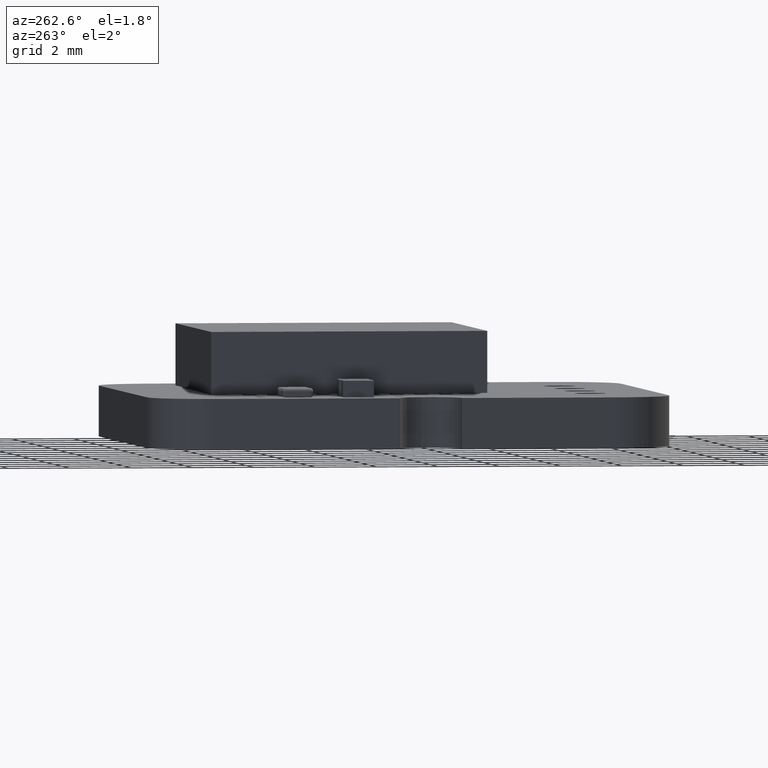
[diagram: clean part render]
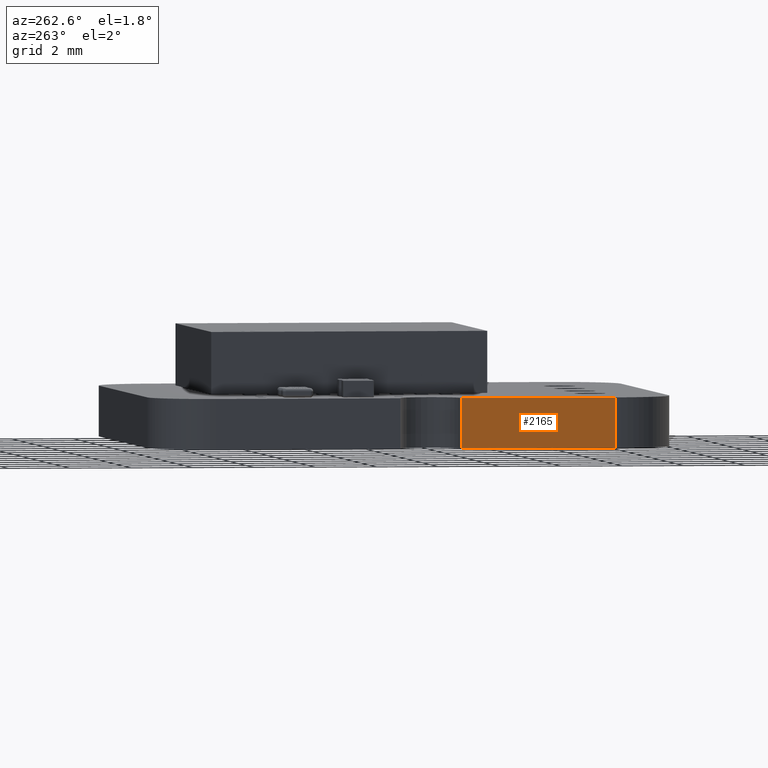
[diagram: same view with one face highlighted and labeled with its STEP entity id]
A machine part, auxiliary view. The second image highlights one B-rep face of the part: STEP entity #2165.
In plain terms, the highlighted planar face has unit normal (1, 0, 0).
Its self-contained STEP definition (entity closure, byte-faithful):
#2109 = VERTEX_POINT('',#2110);
#2110 = CARTESIAN_POINT('',(0.889,-11.669,0.82));
#2116 = EDGE_CURVE('',#2117,#2109,#2119,.T.);
#2117 = VERTEX_POINT('',#2118);
#2118 = CARTESIAN_POINT('',(0.889,-11.669,-0.82));
#2119 = LINE('',#2120,#2121);
#2120 = CARTESIAN_POINT('',(0.889,-11.669,-0.82));
#2121 = VECTOR('',#2122,1.);
#2122 = DIRECTION('',(0.E+000,0.E+000,1.));
#2165 = ADVANCED_FACE('',(#2166),#2191,.F.);
#2166 = FACE_BOUND('',#2167,.F.);
#2167 = EDGE_LOOP('',(#2168,#2169,#2177,#2185));
#2168 = ORIENTED_EDGE('',*,*,#2116,.T.);
#2169 = ORIENTED_EDGE('',*,*,#2170,.T.);
#2170 = EDGE_CURVE('',#2109,#2171,#2173,.T.);
#2171 = VERTEX_POINT('',#2172);
#2172 = CARTESIAN_POINT('',(0.889,-16.669,0.82));
#2173 = LINE('',#2174,#2175);
#2174 = CARTESIAN_POINT('',(0.889,-11.669,0.82));
#2175 = VECTOR('',#2176,1.);
#2176 = DIRECTION('',(0.E+000,-1.,0.E+000));
#2177 = ORIENTED_EDGE('',*,*,#2178,.F.);
#2178 = EDGE_CURVE('',#2179,#2171,#2181,.T.);
#2179 = VERTEX_POINT('',#2180);
#2180 = CARTESIAN_POINT('',(0.889,-16.669,-0.82));
#2181 = LINE('',#2182,#2183);
#2182 = CARTESIAN_POINT('',(0.889,-16.669,-0.82));
#2183 = VECTOR('',#2184,1.);
#2184 = DIRECTION('',(0.E+000,0.E+000,1.));
#2185 = ORIENTED_EDGE('',*,*,#2186,.F.);
#2186 = EDGE_CURVE('',#2117,#2179,#2187,.T.);
#2187 = LINE('',#2188,#2189);
#2188 = CARTESIAN_POINT('',(0.889,-11.669,-0.82));
#2189 = VECTOR('',#2190,1.);
#2190 = DIRECTION('',(0.E+000,-1.,0.E+000));
#2191 = PLANE('',#2192);
#2192 = AXIS2_PLACEMENT_3D('',#2193,#2194,#2195);
#2193 = CARTESIAN_POINT('',(0.889,-11.669,-0.82));
#2194 = DIRECTION('',(1.,0.E+000,-0.E+000));
#2195 = DIRECTION('',(0.E+000,-1.,0.E+000));